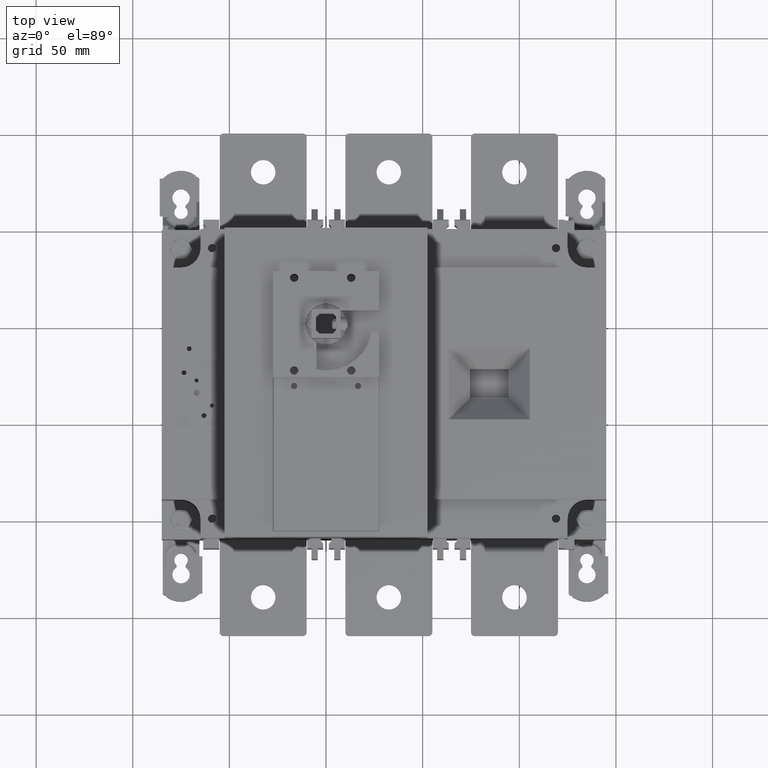
[diagram: clean part render]
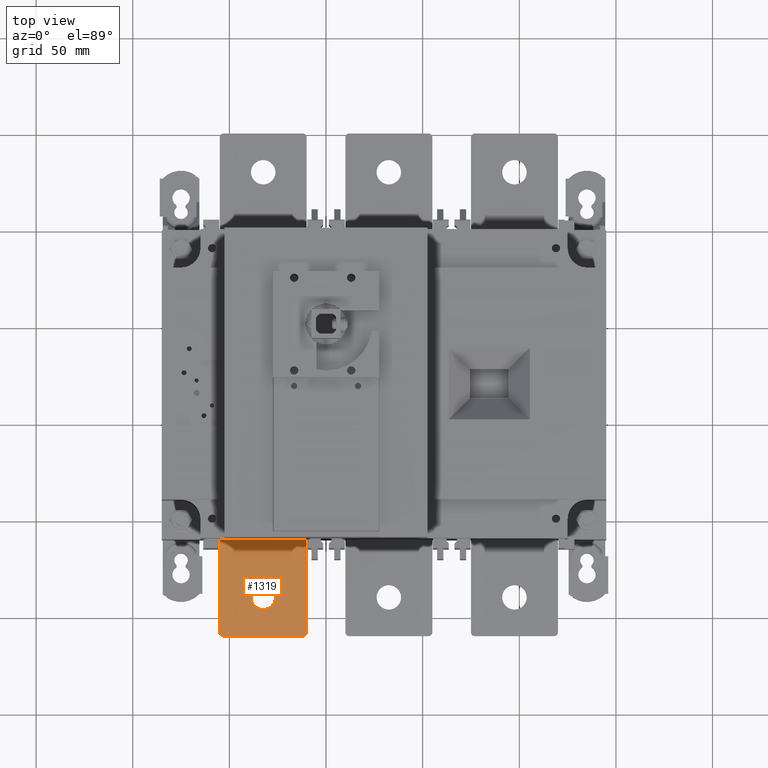
[diagram: same view with one face highlighted and labeled with its STEP entity id]
A machine part, top view. The second image highlights one B-rep face of the part: STEP entity #1319.
In plain terms, the highlighted planar face has unit normal (0, 0, 1).
Its self-contained STEP definition (entity closure, byte-faithful):
#795=FACE_BOUND('',#3474,.T.);
#796=FACE_BOUND('',#3475,.T.);
#1319=ADVANCED_FACE('',(#795,#796),#1989,.T.);
#1989=PLANE('',#15512);
#3474=EDGE_LOOP('',(#6201));
#3475=EDGE_LOOP('',(#6202,#6203,#6204,#6205,#6206,#6207,#6208,#6209,#6210,
#6211));
#4289=CIRCLE('',#15508,6.35);
#4290=CIRCLE('',#15510,2.);
#4291=CIRCLE('',#15511,2.);
#6201=ORIENTED_EDGE('',*,*,#10891,.F.);
#6202=ORIENTED_EDGE('',*,*,#10892,.F.);
#6203=ORIENTED_EDGE('',*,*,#10652,.T.);
#6204=ORIENTED_EDGE('',*,*,#10893,.F.);
#6205=ORIENTED_EDGE('',*,*,#10894,.F.);
#6206=ORIENTED_EDGE('',*,*,#10895,.F.);
#6207=ORIENTED_EDGE('',*,*,#10896,.F.);
#6208=ORIENTED_EDGE('',*,*,#10897,.F.);
#6209=ORIENTED_EDGE('',*,*,#10898,.F.);
#6210=ORIENTED_EDGE('',*,*,#10899,.F.);
#6211=ORIENTED_EDGE('',*,*,#10900,.F.);
#9072=VERTEX_POINT('',#22060);
#9073=VERTEX_POINT('',#22062);
#9251=VERTEX_POINT('',#22680);
#9252=VERTEX_POINT('',#22683);
#9253=VERTEX_POINT('',#22685);
#9254=VERTEX_POINT('',#22687);
#9255=VERTEX_POINT('',#22689);
#9256=VERTEX_POINT('',#22691);
#9257=VERTEX_POINT('',#22693);
#9258=VERTEX_POINT('',#22695);
#9259=VERTEX_POINT('',#22697);
#10652=EDGE_CURVE('',#9073,#9072,#12385,.T.);
#10891=EDGE_CURVE('',#9251,#9251,#4289,.T.);
#10892=EDGE_CURVE('',#9073,#9252,#12571,.T.);
#10893=EDGE_CURVE('',#9253,#9072,#12572,.T.);
#10894=EDGE_CURVE('',#9254,#9253,#12573,.T.);
#10895=EDGE_CURVE('',#9255,#9254,#12574,.T.);
#10896=EDGE_CURVE('',#9256,#9255,#4290,.T.);
#10897=EDGE_CURVE('',#9257,#9256,#12575,.T.);
#10898=EDGE_CURVE('',#9258,#9257,#4291,.T.);
#10899=EDGE_CURVE('',#9259,#9258,#12576,.T.);
#10900=EDGE_CURVE('',#9252,#9259,#12577,.T.);
#12385=LINE('',#22061,#13813);
#12571=LINE('',#22682,#13999);
#12572=LINE('',#22684,#14000);
#12573=LINE('',#22686,#14001);
#12574=LINE('',#22688,#14002);
#12575=LINE('',#22692,#14003);
#12576=LINE('',#22696,#14004);
#12577=LINE('',#22698,#14005);
#13813=VECTOR('',#17603,1.);
#13999=VECTOR('',#18011,1.);
#14000=VECTOR('',#18012,1.);
#14001=VECTOR('',#18013,1.);
#14002=VECTOR('',#18014,1.);
#14003=VECTOR('',#18017,1.);
#14004=VECTOR('',#18020,1.);
#14005=VECTOR('',#18021,1.);
#15508=AXIS2_PLACEMENT_3D('',#22679,#18007,#18008);
#15510=AXIS2_PLACEMENT_3D('',#22690,#18015,#18016);
#15511=AXIS2_PLACEMENT_3D('',#22694,#18018,#18019);
#15512=AXIS2_PLACEMENT_3D('',#22699,#18022,#18023);
#17603=DIRECTION('',(-1.,1.62628981326226E-014,0.));
#18007=DIRECTION('',(0.,0.,1.));
#18008=DIRECTION('',(1.,0.,0.));
#18011=DIRECTION('',(0.,-1.,0.));
#18012=DIRECTION('',(0.,1.,0.));
#18013=DIRECTION('',(1.,-5.33761069531301E-016,0.));
#18014=DIRECTION('',(0.,1.,0.));
#18015=DIRECTION('',(0.,0.,-1.));
#18016=DIRECTION('',(1.,0.,0.));
#18017=DIRECTION('',(-1.,0.,0.));
#18018=DIRECTION('',(0.,0.,-1.));
#18019=DIRECTION('',(1.,0.,0.));
#18020=DIRECTION('',(0.,-1.,0.));
#18021=DIRECTION('',(1.,5.3376106953135E-016,0.));
#18022=DIRECTION('',(0.,0.,1.));
#18023=DIRECTION('',(-1.,0.,0.));
#22060=CARTESIAN_POINT('',(-48.5,-109.999999999997,-74.4000000000012));
#22061=CARTESIAN_POINT('',(145.,-110.,-74.4000000000012));
#22062=CARTESIAN_POINT('',(-16.5,-109.999999999997,-74.4000000000012));
#22679=CARTESIAN_POINT('',(-32.5,-140.,-74.4000000000012));
#22680=CARTESIAN_POINT('',(-26.15,-140.,-74.4000000000012));
#22682=CARTESIAN_POINT('',(-16.5,-106.,-74.4000000000012));
#22683=CARTESIAN_POINT('',(-16.5,-110.3,-74.4000000000012));
#22684=CARTESIAN_POINT('',(-48.5,-110.3,-74.4000000000012));
#22685=CARTESIAN_POINT('',(-48.5,-110.3,-74.4000000000012));
#22686=CARTESIAN_POINT('',(-55.,-110.3,-74.4000000000012));
#22687=CARTESIAN_POINT('',(-55.,-110.3,-74.4000000000012));
#22688=CARTESIAN_POINT('',(-55.,-158.,-74.4000000000012));
#22689=CARTESIAN_POINT('',(-55.,-158.,-74.4000000000012));
#22690=CARTESIAN_POINT('',(-53.,-158.,-74.4000000000012));
#22691=CARTESIAN_POINT('',(-53.,-160.,-74.4000000000012));
#22692=CARTESIAN_POINT('',(-12.,-160.,-74.4000000000012));
#22693=CARTESIAN_POINT('',(-12.,-160.,-74.4000000000012));
#22694=CARTESIAN_POINT('',(-12.,-158.,-74.4000000000012));
#22695=CARTESIAN_POINT('',(-10.,-158.,-74.4000000000012));
#22696=CARTESIAN_POINT('',(-10.,-110.3,-74.4000000000012));
#22697=CARTESIAN_POINT('',(-10.,-110.3,-74.4000000000012));
#22698=CARTESIAN_POINT('',(-16.4999999999995,-110.3,-74.4000000000012));
#22699=CARTESIAN_POINT('',(-40.5,-64.,-74.4000000000012));